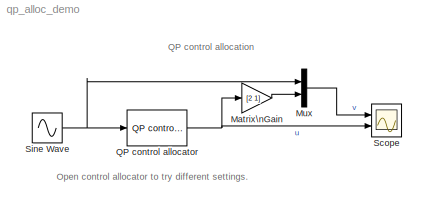
MODEL qp_alloc_demo
KIND model
BLOCK [Gain] Matrix\nGain
  Gain = [2 1]
  Multiplication = Matrix(K*u)
  SID = 1
BLOCK [Mux] Mux
  DisplayOption = bar
  Inputs = 2
  Ports = [2, 1]
  SID = 2
BLOCK [Reference] QP control allocator  REF=qcatlib/QP control allocator  (lib defined in mdl_185632192637, slx_3440b88f227d, +1 more)
  B = [2 1]
  Ports = [1, 1]
  SID = 3
  SourceBlock = qcatlib/QP control allocator
  SourceType = QP control allocator
  T = .1
  Wu = eye(2)
  Wv = 1
  alg = SLS
  gam = 1e6
  imax = 100
  plim = [-1 1;-1 1]
  rlim = [-1 1;-1 1]*2
  tol = 1e-4
  ud = [0 0]'
BLOCK [Scope] Scope
  DataFormat = StructureWithTime
  Floating = off
  NumInputPorts = 2
  Ports = [2]
  SID = 4
  ShowLegends = off
  TimeRange = 10
  YMax = 5~1.2
  YMin = -5~-1.2
BLOCK [Sin] Sine Wave
  Amplitude = 2.8
  Ports = [0, 1]
  SID = 5
  SampleTime = 0
ANNOTATION (root): Open control allocator to try different settings.
ANNOTATION (root): QP control allocation
LINE Matrix\nGain:1 -> Mux:2
LINE Mux:1 -> Scope:1
NET QP control allocator:1 -> Matrix\nGain:1, Scope:2
NET Sine Wave:1 -> Mux:1, QP control allocator:1
note: NET lines group one-source signal fan-out (src -> all destinations, sorted); 1:1 wires keep LINE
